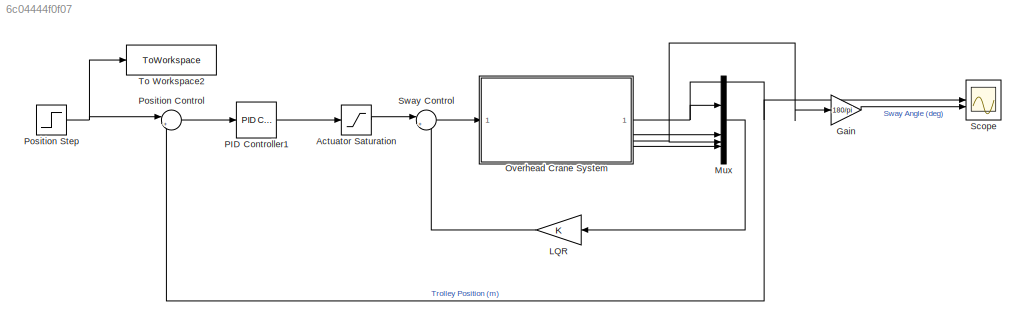
MODEL slx_6c04444f0f07
KIND model
CONFIG AbsTol = auto
CONFIG EnableMultiTasking = off
CONFIG FixedStep = 1/1000
CONFIG MaxStep = auto
CONFIG MinStep = auto
CONFIG RelTol = 1e-3
CONFIG SampleTimeConstraint = Unconstrained
CONFIG SolverName = FixedStepAuto
CONFIG StartTime = 0.0
CONFIG StopTime = stop_time
BLOCK [Saturate] Actuator Saturation
  LowerLimit = -F_max
  UpperLimit = F_max
BLOCK [Gain] Gain
  Gain = 180/pi
BLOCK [Gain] LQR
  Gain = K
  Multiplication = Matrix(K*u)
BLOCK [Mux] Mux
  DisplayOption = bar
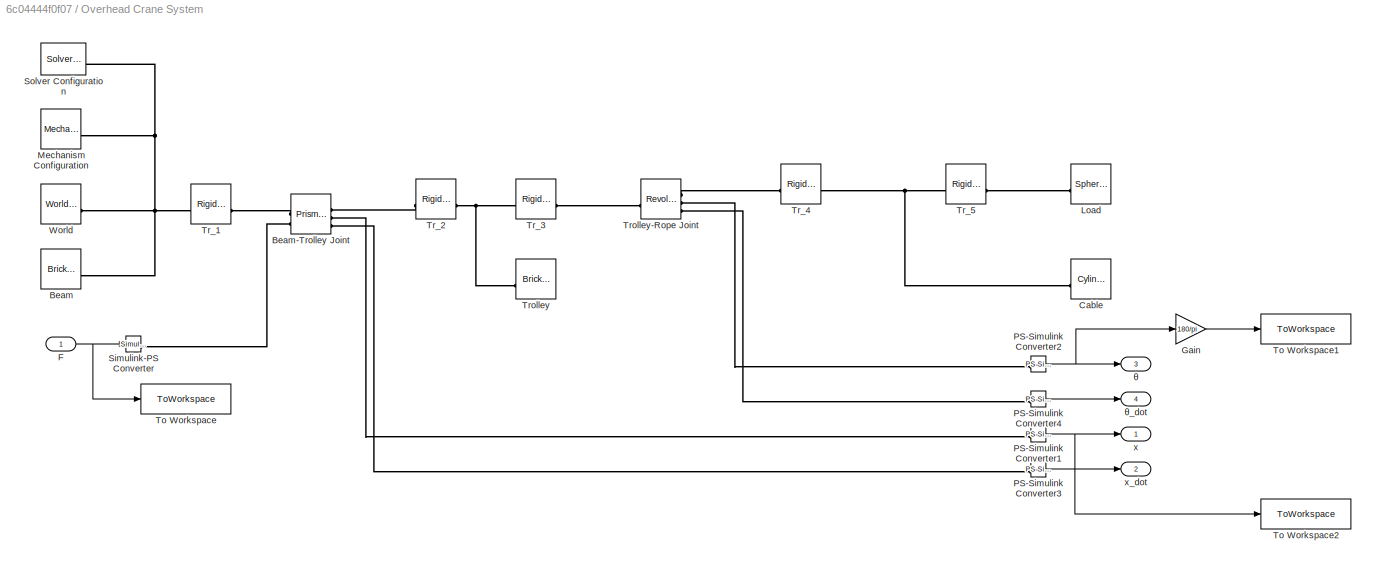
BLOCK [SubSystem] Overhead Crane System
BLOCK [Reference] Overhead Crane System/Beam  REF=sm_lib/Body Elements/Brick Solid
  SourceBlock = sm_lib/Body Elements/Brick Solid
  SourceType = Brick Solid
BLOCK [Reference] Overhead Crane System/Beam-Trolley Joint  REF=sm_lib/Joints/Prismatic
Joint
  SourceBlock = sm_lib/Joints/Prismatic\nJoint
  SourceType = Prismatic\nJoint
BLOCK [Reference] Overhead Crane System/Cable  REF=sm_lib/Body Elements/Cylindrical Solid
  SourceBlock = sm_lib/Body Elements/Cylindrical Solid
  SourceType = Cylindrical Solid
BLOCK [Inport] Overhead Crane System/F
BLOCK [Gain] Overhead Crane System/Gain
  Gain = 180/pi
BLOCK [Reference] Overhead Crane System/Load  REF=sm_lib/Body Elements/Spherical Solid
  SourceBlock = sm_lib/Body Elements/Spherical Solid
  SourceType = Spherical Solid
BLOCK [Reference] Overhead Crane System/Mechanism Configuration  REF=sm_lib/Utilities/Mechanism
Configuration
  SourceBlock = sm_lib/Utilities/Mechanism\nConfiguration
  SourceType = Mechanism\nConfiguration
BLOCK [Reference] Overhead Crane System/PS-Simulink Converter1  REF=nesl_utility/PS-Simulink
Converter
  SourceBlock = nesl_utility/PS-Simulink\nConverter
  SourceType = PS-Simulink\nConverter
BLOCK [Reference] Overhead Crane System/PS-Simulink Converter2  REF=nesl_utility/PS-Simulink
Converter
  SourceBlock = nesl_utility/PS-Simulink\nConverter
  SourceType = PS-Simulink\nConverter
BLOCK [Reference] Overhead Crane System/PS-Simulink Converter3  REF=nesl_utility/PS-Simulink
Converter
  SourceBlock = nesl_utility/PS-Simulink\nConverter
  SourceType = PS-Simulink\nConverter
BLOCK [Reference] Overhead Crane System/PS-Simulink Converter4  REF=nesl_utility/PS-Simulink
Converter
  SourceBlock = nesl_utility/PS-Simulink\nConverter
  SourceType = PS-Simulink\nConverter
BLOCK [Reference] Overhead Crane System/Simulink-PS Converter  REF=nesl_utility/Simulink-PS
Converter
  SourceBlock = nesl_utility/Simulink-PS\nConverter
  SourceType = Simulink-PS\nConverter
BLOCK [Reference] Overhead Crane System/Solver Configuration  REF=nesl_utility/Solver
Configuration
  SourceBlock = nesl_utility/Solver\nConfiguration
  SourceType = Solver\nConfiguration
BLOCK [ToWorkspace] Overhead Crane System/To Workspace
  FixptAsFi = on
  MaxDataPoints = inf
  SampleTime = -1
  SaveFormat = Timeseries
  VariableName = trolley_Force
BLOCK [ToWorkspace] Overhead Crane System/To Workspace1
  FixptAsFi = on
  MaxDataPoints = inf
  SampleTime = -1
  SaveFormat = Timeseries
  VariableName = rope_Angle
BLOCK [ToWorkspace] Overhead Crane System/To Workspace2
  FixptAsFi = on
  MaxDataPoints = inf
  SampleTime = -1
  SaveFormat = Timeseries
  VariableName = trolley_Pos
BLOCK [Reference] Overhead Crane System/Tr_1  REF=sm_lib/Frames and
Transforms/Rigid
Transform
  SourceBlock = sm_lib/Frames and\nTransforms/Rigid\nTransform
  SourceType = Rigid\nTransform
BLOCK [Reference] Overhead Crane System/Tr_2  REF=sm_lib/Frames and
Transforms/Rigid
Transform
  SourceBlock = sm_lib/Frames and\nTransforms/Rigid\nTransform
  SourceType = Rigid\nTransform
BLOCK [Reference] Overhead Crane System/Tr_3  REF=sm_lib/Frames and
Transforms/Rigid
Transform
  SourceBlock = sm_lib/Frames and\nTransforms/Rigid\nTransform
  SourceType = Rigid\nTransform
BLOCK [Reference] Overhead Crane System/Tr_4  REF=sm_lib/Frames and
Transforms/Rigid
Transform
  SourceBlock = sm_lib/Frames and\nTransforms/Rigid\nTransform
  SourceType = Rigid\nTransform
BLOCK [Reference] Overhead Crane System/Tr_5  REF=sm_lib/Frames and
Transforms/Rigid
Transform
  SourceBlock = sm_lib/Frames and\nTransforms/Rigid\nTransform
  SourceType = Rigid\nTransform
BLOCK [Reference] Overhead Crane System/Trolley  REF=sm_lib/Body Elements/Brick Solid
  SourceBlock = sm_lib/Body Elements/Brick Solid
  SourceType = Brick Solid
BLOCK [Reference] Overhead Crane System/Trolley-Rope Joint  REF=sm_lib/Joints/Revolute Joint
  SourceBlock = sm_lib/Joints/Revolute Joint
  SourceType = Revolute Joint
BLOCK [Reference] Overhead Crane System/World  REF=sm_lib/Frames and
Transforms/World Frame
  SourceBlock = sm_lib/Frames and\nTransforms/World Frame
  SourceType = World Frame
BLOCK [Outport] Overhead Crane System/x
BLOCK [Outport] Overhead Crane System/x_dot
  Port = 2
BLOCK [Outport] Overhead Crane System/θ
  Port = 3
BLOCK [Outport] Overhead Crane System/θ_dot
  Port = 4
BLOCK [Reference] PID Controller1  REF=slpidlib/PID Controller
  LibrarySourceBlock = simulink/Continuous/PID Controller
  SourceBlock = slpidlib/PID Controller
  SourceType = PID 1dof
BLOCK [Sum] Position Control
  Inputs = |+-
  NameLocation = top
BLOCK [Step] Position Step
  After = 4
  SampleTime = 0
  Time = 0
BLOCK [Scope] Scope
  Floating = off
  NumInputPorts = 2
  ScopeSpecificationString = Simulink.scopes.TimeScopeBlockCfg('CurrentConfiguration', extmgr.ConfigurationSet(extmgr.Configuration('Core','General UI',true),extmgr.Configuration('Core','Source UI',true),extmgr.Configuration('Sources','WiredSimulink',true),extmgr.Configuration('Visuals','Time Domain',true,'SerializedDisplays',{struct('MinYLimReal','-0.497','MaxYLimReal','4.47304','YLabelReal','','MinYLimMag','0.00000','MaxYLi...<+2067ch>
BLOCK [Sum] Sway Control
  Inputs = |+-
  NameLocation = top
BLOCK [ToWorkspace] To Workspace2
  FixptAsFi = on
  MaxDataPoints = inf
  NameLocation = top
  SampleTime = -1
  SaveFormat = Timeseries
  VariableName = trolley_ref_Pos
LINE Actuator Saturation:1 -> Sway Control:1
LINE Gain:1 -> Scope:2
LINE LQR:1 -> Sway Control:2
LINE Mux:1 -> LQR:1
NET Overhead Crane System/F:1 -> Overhead Crane System/Simulink-PS Converter:1, Overhead Crane System/To Workspace:1
LINE Overhead Crane System/Gain:1 -> Overhead Crane System/To Workspace1:1
NET Overhead Crane System/PS-Simulink Converter1:1 -> Overhead Crane System/To Workspace2:1, Overhead Crane System/x:1
NET Overhead Crane System/PS-Simulink Converter2:1 -> Overhead Crane System/Gain:1, Overhead Crane System/θ:1
LINE Overhead Crane System/PS-Simulink Converter3:1 -> Overhead Crane System/x_dot:1
LINE Overhead Crane System/PS-Simulink Converter4:1 -> Overhead Crane System/θ_dot:1
NET Overhead Crane System:1 -> Mux:1, Position Control:2, Scope:1
LINE Overhead Crane System:2 -> Mux:2
NET Overhead Crane System:3 -> Gain:1, Mux:3
LINE Overhead Crane System:4 -> Mux:4
LINE PID Controller1:1 -> Actuator Saturation:1
LINE Position Control:1 -> PID Controller1:1
NET Position Step:1 -> Position Control:1, To Workspace2:1
LINE Sway Control:1 -> Overhead Crane System:1
PLINE Overhead Crane System/Beam-Trolley Joint:LConn1 -- Overhead Crane System/Tr_1:RConn1
PLINE Overhead Crane System/Beam-Trolley Joint:LConn2 -- Overhead Crane System/Simulink-PS Converter:RConn1
PLINE Overhead Crane System/Beam-Trolley Joint:RConn1 -- Overhead Crane System/Tr_2:LConn1
PLINE Overhead Crane System/Beam-Trolley Joint:RConn2 -- Overhead Crane System/PS-Simulink Converter1:LConn1
PLINE Overhead Crane System/Beam-Trolley Joint:RConn3 -- Overhead Crane System/PS-Simulink Converter3:LConn1
PNET net1: Overhead Crane System/Beam:RConn1 -- Overhead Crane System/Mechanism Configuration:RConn1 -- Overhead Crane System/Solver Configuration:RConn1 -- Overhead Crane System/Tr_1:LConn1 -- Overhead Crane System/World:RConn1
PNET net2: Overhead Crane System/Cable:RConn1 -- Overhead Crane System/Tr_4:RConn1 -- Overhead Crane System/Tr_5:LConn1
PLINE Overhead Crane System/Load:RConn1 -- Overhead Crane System/Tr_5:RConn1
PLINE Overhead Crane System/PS-Simulink Converter2:LConn1 -- Overhead Crane System/Trolley-Rope Joint:RConn2
PLINE Overhead Crane System/PS-Simulink Converter4:LConn1 -- Overhead Crane System/Trolley-Rope Joint:RConn3
PNET net3: Overhead Crane System/Tr_2:RConn1 -- Overhead Crane System/Tr_3:LConn1 -- Overhead Crane System/Trolley:RConn1
PLINE Overhead Crane System/Tr_3:RConn1 -- Overhead Crane System/Trolley-Rope Joint:LConn1
PLINE Overhead Crane System/Tr_4:LConn1 -- Overhead Crane System/Trolley-Rope Joint:RConn1
note: NET lines group one-source signal fan-out (src -> all destinations, sorted); 1:1 wires keep LINE; PNET lines group multi-terminal physical nets as a canonical sorted terminal list (undirected conserving connections); 2-terminal nets keep the pairwise PLINE form
